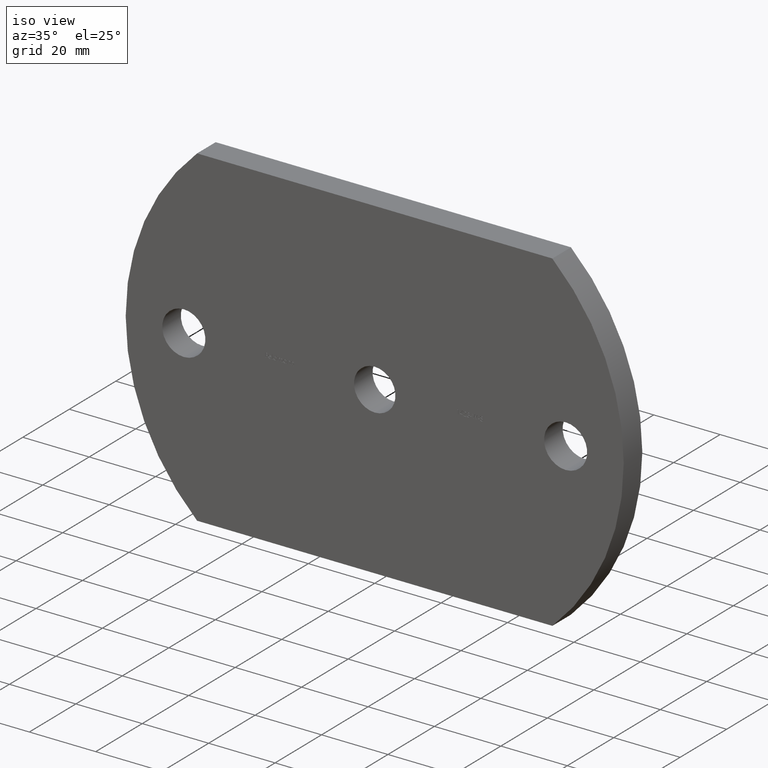
[diagram: clean part render]
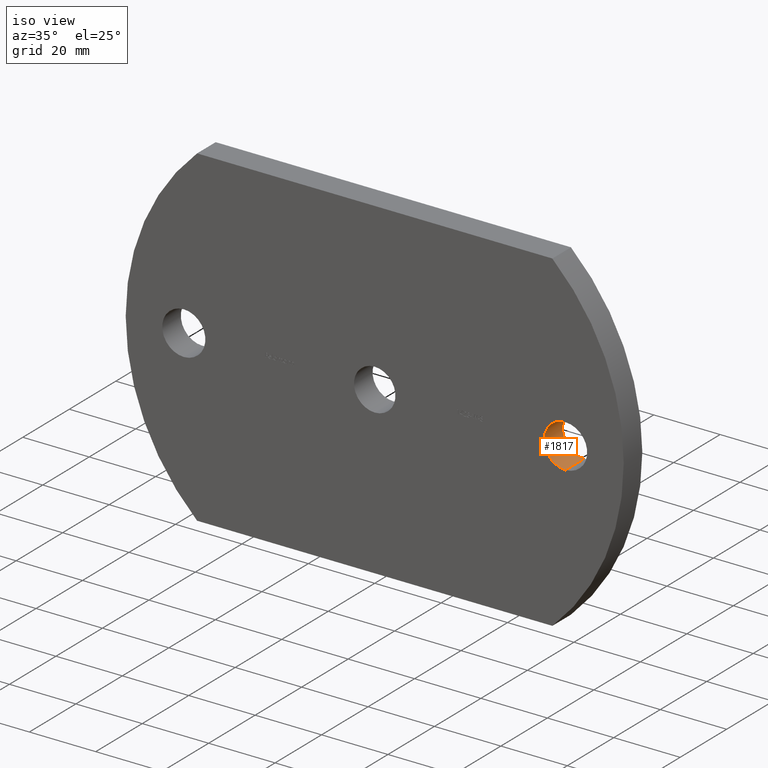
[diagram: same view with one face highlighted and labeled with its STEP entity id]
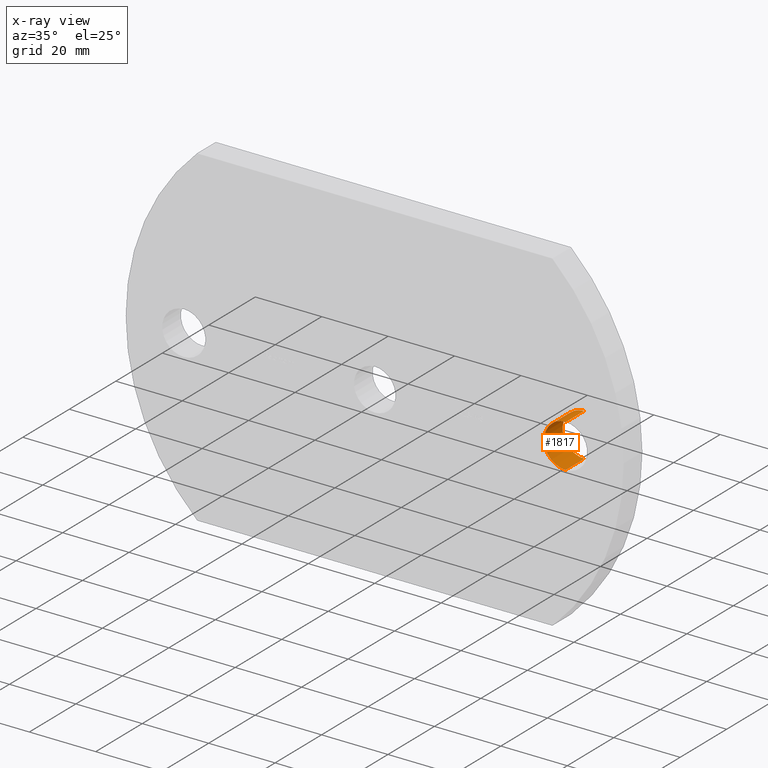
[diagram: x-ray of the same camera — body ghosted, the highlighted face saturated]
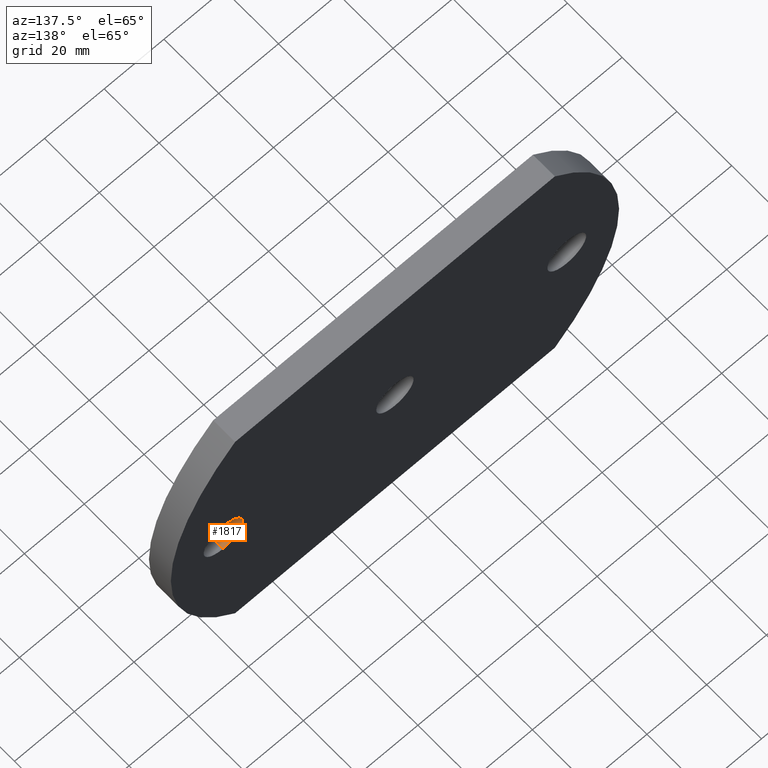
[diagram: same view with one face highlighted and labeled with its STEP entity id]
A machine part, iso view. The second image highlights one B-rep face of the part: STEP entity #1817.
The next image is the same camera in x-ray: the body ghosted, the highlighted face saturated — about 0% of this face is hidden behind the body in this view.
A second angle (auxiliary view) of the same face is appended — the face is thin or edge-on in the first view.
In plain terms, the highlighted cylindrical surface (edge-blend (fillet) strip) has radius 6.5 mm, axis along (-0, 1, -0).
Its self-contained STEP definition (entity closure, byte-faithful):
#121 = AXIS2_PLACEMENT_3D ( 'NONE', #4740, #5592, #429 ) ;
#250 = VERTEX_POINT ( 'NONE', #7215 ) ;
#429 = DIRECTION ( 'NONE',  ( 0.0000000000000000000, 0.0000000000000000000, 1.000000000000000000 ) ) ;
#846 = CARTESIAN_POINT ( 'NONE',  ( 57.50000000000000000, 0.0000000000000000000, -6.499999999999994700 ) ) ;
#890 = CYLINDRICAL_SURFACE ( 'NONE', #121, 6.499999999999994700 ) ;
#1399 = CIRCLE ( 'NONE', #3678, 6.499999999999994700 ) ;
#1817 = ADVANCED_FACE ( 'NONE', ( #8312 ), #890, .F. ) ;
#3071 = EDGE_CURVE ( 'NONE', #4521, #8347, #5325, .T. ) ;
#3412 = CARTESIAN_POINT ( 'NONE',  ( 57.50000000000000000, 8.000000000000000000, 6.499999999999994700 ) ) ;
#3442 = DIRECTION ( 'NONE',  ( -0.0000000000000000000, 1.000000000000000000, -0.0000000000000000000 ) ) ;
#3542 = CIRCLE ( 'NONE', #6605, 6.499999999999994700 ) ;
#3678 = AXIS2_PLACEMENT_3D ( 'NONE', #7876, #6146, #9495 ) ;
#3844 = VECTOR ( 'NONE', #5782, 1000.000000000000000 ) ;
#3968 = EDGE_LOOP ( 'NONE', ( #6694, #11075, #10232, #7309 ) ) ;
#4416 = EDGE_CURVE ( 'NONE', #250, #4521, #3542, .T. ) ;
#4521 = VERTEX_POINT ( 'NONE', #7700 ) ;
#4740 = CARTESIAN_POINT ( 'NONE',  ( 57.50000000000000000, 0.0000000000000000000, 0.0000000000000000000 ) ) ;
#4892 = CARTESIAN_POINT ( 'NONE',  ( 57.50000000000000000, 0.0000000000000000000, 0.0000000000000000000 ) ) ;
#5141 = VERTEX_POINT ( 'NONE', #5515 ) ;
#5308 = VECTOR ( 'NONE', #3442, 1000.000000000000000 ) ;
#5325 = LINE ( 'NONE', #6265, #3844 ) ;
#5515 = CARTESIAN_POINT ( 'NONE',  ( 57.50000000000000000, 8.000000000000000000, -6.499999999999994700 ) ) ;
#5592 = DIRECTION ( 'NONE',  ( -0.0000000000000000000, 1.000000000000000000, -0.0000000000000000000 ) ) ;
#5782 = DIRECTION ( 'NONE',  ( -0.0000000000000000000, 1.000000000000000000, -0.0000000000000000000 ) ) ;
#6146 = DIRECTION ( 'NONE',  ( 0.0000000000000000000, 1.000000000000000000, 0.0000000000000000000 ) ) ;
#6265 = CARTESIAN_POINT ( 'NONE',  ( 57.50000000000000000, 0.0000000000000000000, 6.499999999999994700 ) ) ;
#6605 = AXIS2_PLACEMENT_3D ( 'NONE', #4892, #8438, #8357 ) ;
#6694 = ORIENTED_EDGE ( 'NONE', *, *, #4416, .F. ) ;
#7215 = CARTESIAN_POINT ( 'NONE',  ( 57.50000000000000000, 0.0000000000000000000, -6.499999999999994700 ) ) ;
#7309 = ORIENTED_EDGE ( 'NONE', *, *, #3071, .F. ) ;
#7700 = CARTESIAN_POINT ( 'NONE',  ( 57.50000000000000000, 0.0000000000000000000, 6.499999999999994700 ) ) ;
#7876 = CARTESIAN_POINT ( 'NONE',  ( 57.50000000000000000, 8.000000000000000000, 0.0000000000000000000 ) ) ;
#8312 = FACE_OUTER_BOUND ( 'NONE', #3968, .T. ) ;
#8347 = VERTEX_POINT ( 'NONE', #3412 ) ;
#8357 = DIRECTION ( 'NONE',  ( 0.0000000000000000000, 0.0000000000000000000, 1.000000000000000000 ) ) ;
#8438 = DIRECTION ( 'NONE',  ( 0.0000000000000000000, 1.000000000000000000, 0.0000000000000000000 ) ) ;
#9384 = EDGE_CURVE ( 'NONE', #5141, #8347, #1399, .T. ) ;
#9495 = DIRECTION ( 'NONE',  ( 0.0000000000000000000, 0.0000000000000000000, 1.000000000000000000 ) ) ;
#10129 = EDGE_CURVE ( 'NONE', #250, #5141, #10162, .T. ) ;
#10162 = LINE ( 'NONE', #846, #5308 ) ;
#10232 = ORIENTED_EDGE ( 'NONE', *, *, #9384, .T. ) ;
#11075 = ORIENTED_EDGE ( 'NONE', *, *, #10129, .T. ) ;